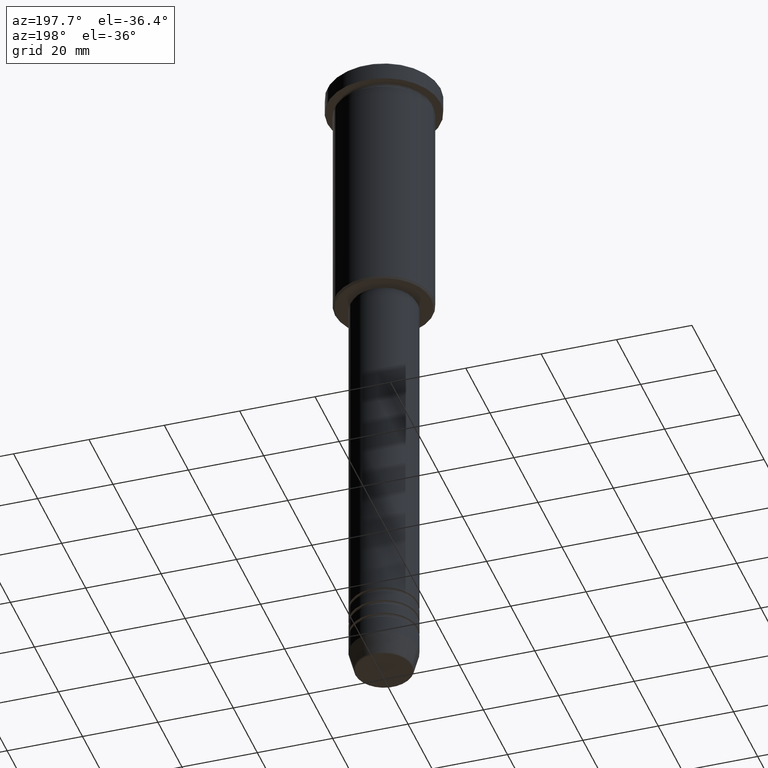
[diagram: clean part render]
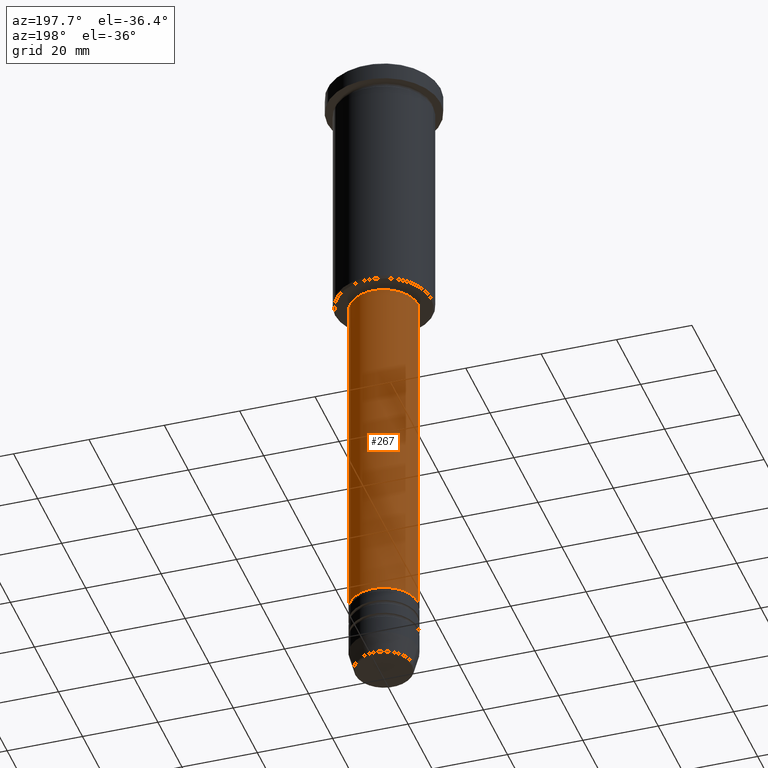
[diagram: same view with one face highlighted and labeled with its STEP entity id]
A machine part, auxiliary view. The second image highlights one B-rep face of the part: STEP entity #267.
In plain terms, the highlighted cylindrical surface (edge-blend (fillet) strip) has radius 9 mm, axis along (-0, -0, 1).
Its self-contained STEP definition (entity closure, byte-faithful):
#2 = DIRECTION ( 'NONE',  ( -0.000000000000000000, -0.000000000000000000, 1.000000000000000000 ) ) ;
#6 = FACE_OUTER_BOUND ( 'NONE', #832, .T. ) ;
#34 = VERTEX_POINT ( 'NONE', #1050 ) ;
#58 = AXIS2_PLACEMENT_3D ( 'NONE', #870, #948, #140 ) ;
#113 = VERTEX_POINT ( 'NONE', #1044 ) ;
#140 = DIRECTION ( 'NONE',  ( 1.000000000000000000, 0.000000000000000000, 0.000000000000000000 ) ) ;
#192 = VECTOR ( 'NONE', #2, 1000.000000000000000 ) ;
#257 = CYLINDRICAL_SURFACE ( 'NONE', #681, 9.000000000000000000 ) ;
#267 = ADVANCED_FACE ( 'NONE', ( #6 ), #257, .T. ) ;
#326 = CARTESIAN_POINT ( 'NONE',  ( 9.000000000000000000, 0.000000000000000000, 0.000000000000000000 ) ) ;
#330 = VERTEX_POINT ( 'NONE', #1019 ) ;
#352 = CIRCLE ( 'NONE', #58, 9.000000000000001776 ) ;
#419 = DIRECTION ( 'NONE',  ( -0.000000000000000000, -0.000000000000000000, 1.000000000000000000 ) ) ;
#433 = EDGE_CURVE ( 'NONE', #113, #803, #352, .T. ) ;
#455 = LINE ( 'NONE', #907, #192 ) ;
#472 = EDGE_CURVE ( 'NONE', #34, #330, #501, .T. ) ;
#482 = CARTESIAN_POINT ( 'NONE',  ( -9.000000000000001776, 1.102182119232617911E-15, -160.5000000000000000 ) ) ;
#501 = CIRCLE ( 'NONE', #740, 8.999999999999998224 ) ;
#515 = DIRECTION ( 'NONE',  ( -0.000000000000000000, -0.000000000000000000, 1.000000000000000000 ) ) ;
#525 = DIRECTION ( 'NONE',  ( -0.000000000000000000, -0.000000000000000000, 1.000000000000000000 ) ) ;
#621 = DIRECTION ( 'NONE',  ( 1.000000000000000000, 0.000000000000000000, 0.000000000000000000 ) ) ;
#643 = CARTESIAN_POINT ( 'NONE',  ( 0.000000000000000000, 0.000000000000000000, 0.000000000000000000 ) ) ;
#681 = AXIS2_PLACEMENT_3D ( 'NONE', #643, #525, #621 ) ;
#689 = EDGE_CURVE ( 'NONE', #803, #330, #455, .T. ) ;
#712 = DIRECTION ( 'NONE',  ( 1.000000000000000000, 0.000000000000000000, 0.000000000000000000 ) ) ;
#724 = ORIENTED_EDGE ( 'NONE', *, *, #433, .T. ) ;
#740 = AXIS2_PLACEMENT_3D ( 'NONE', #1178, #419, #712 ) ;
#803 = VERTEX_POINT ( 'NONE', #482 ) ;
#832 = EDGE_LOOP ( 'NONE', ( #724, #875, #943, #1172 ) ) ;
#870 = CARTESIAN_POINT ( 'NONE',  ( 0.000000000000000000, 0.000000000000000000, -160.5000000000000000 ) ) ;
#875 = ORIENTED_EDGE ( 'NONE', *, *, #689, .T. ) ;
#886 = LINE ( 'NONE', #326, #1167 ) ;
#899 = EDGE_CURVE ( 'NONE', #113, #34, #886, .T. ) ;
#907 = CARTESIAN_POINT ( 'NONE',  ( -9.000000000000000000, 1.102182119232617714E-15, 0.000000000000000000 ) ) ;
#943 = ORIENTED_EDGE ( 'NONE', *, *, #472, .F. ) ;
#948 = DIRECTION ( 'NONE',  ( -0.000000000000000000, -0.000000000000000000, 1.000000000000000000 ) ) ;
#1019 = CARTESIAN_POINT ( 'NONE',  ( -8.999999999999998224, 1.102182119232617714E-15, -67.00000000000002842 ) ) ;
#1044 = CARTESIAN_POINT ( 'NONE',  ( 9.000000000000001776, 0.000000000000000000, -160.5000000000000000 ) ) ;
#1050 = CARTESIAN_POINT ( 'NONE',  ( 8.999999999999998224, 0.000000000000000000, -67.00000000000002842 ) ) ;
#1167 = VECTOR ( 'NONE', #515, 1000.000000000000000 ) ;
#1172 = ORIENTED_EDGE ( 'NONE', *, *, #899, .F. ) ;
#1178 = CARTESIAN_POINT ( 'NONE',  ( 0.000000000000000000, 0.000000000000000000, -67.00000000000002842 ) ) ;